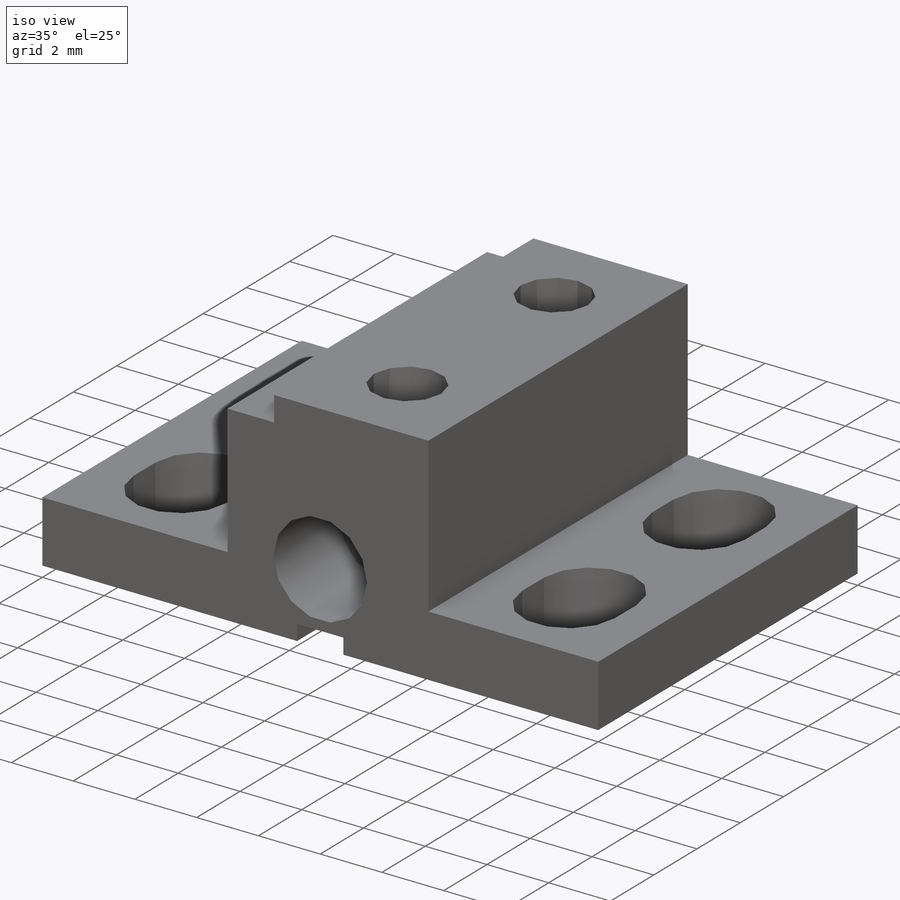
[diagram: iso view]
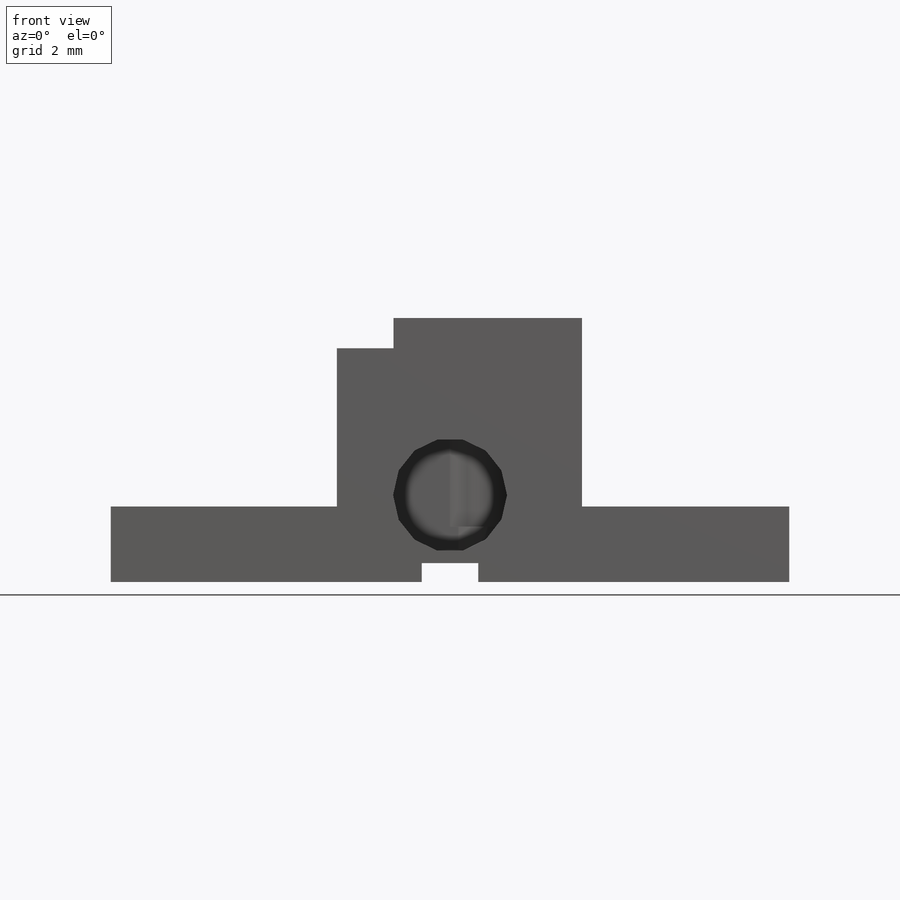
[diagram: front view]
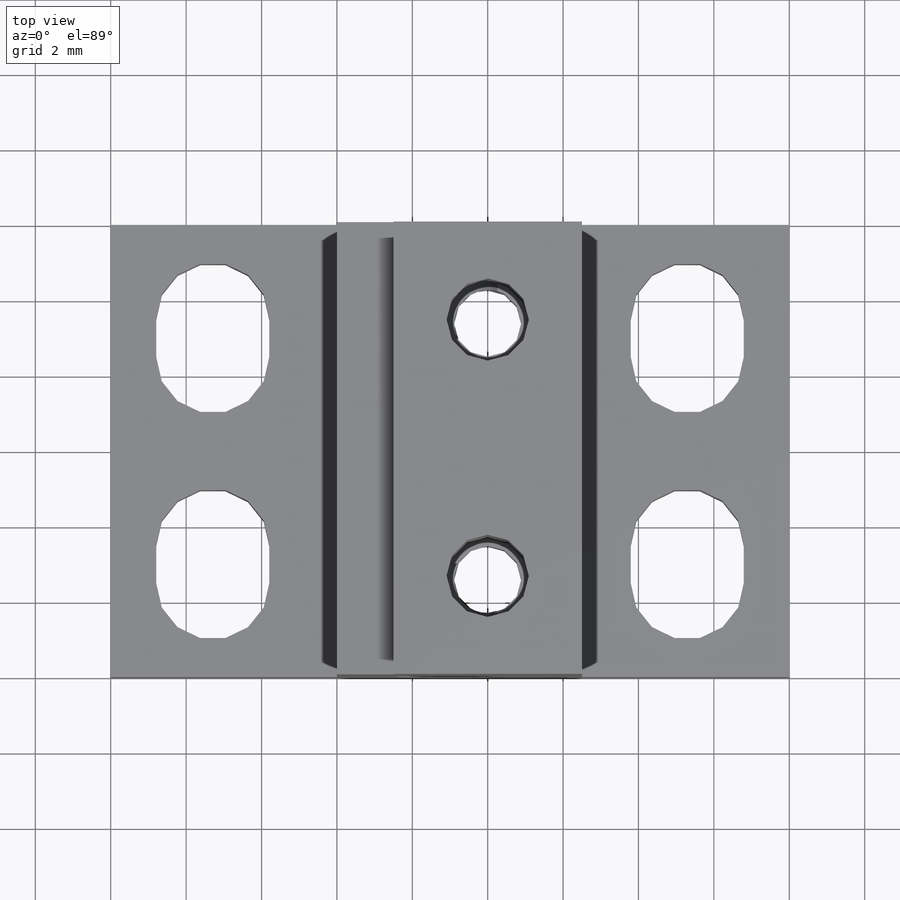
[diagram: top view]
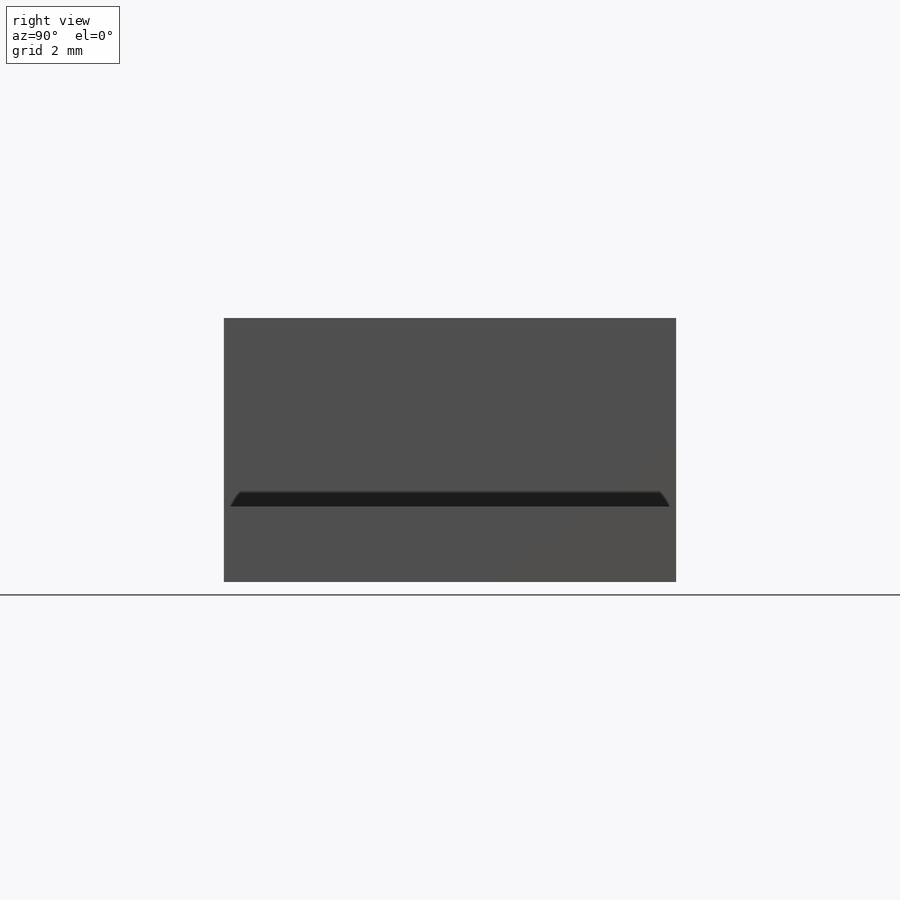
[diagram: right view]
SOLIDWORKS PART (.sldprt)
format: sldprt  version: not decoded by parser v0  size: 356,864 bytes
history: native  units: mm
features: sketch x8, cut_extrude x4, mirror x3, extrude x2, plane x2, material x1, hole x1 + 1 further entry (+13 scaffold rows collapsed)
feature tree (35):
  scaffold x13  (default folders/planes/origin — collapsed)
  material  "6061-T6 (SS)"
  "Origin"  ID=-1
  sketch  "Sketch1"  dims[D1=12.0mm D2=18.0mm]
  extrude  "Extrude1"  Depth=2mm
  plane  "Plane1"
  plane  "Plane2"
  sketch  "Sketch2"  dims[D1=8.25mm D2=1.5mm D3=0.5mm]
  cut_extrude  "Extrude2"  [1 undecoded]
  sketch  "Sketch3"  dims[D3=1.5mm D1=2.5mm D2=1.0mm]
  cut_extrude  "Extrude3"  [1 undecoded]
  mirror  "Mirror1"
  mirror  "Mirror2"
  sketch  "Sketch4"  dims[D1=6.0mm D2=5.5mm]
  extrude  "Extrude4"  Depth=5mm
  sketch  "Sketch5"  dims[D1=5.0mm D2=0.8mm]
  cut_extrude  "Extrude5"  [1 undecoded]
  hole  "#2-56 Tapped Hole1"  Diameter=1.778mm Depth=9.4488mm
  sketch  "3DSketch1"  dims[D1=2.5mm D2=3.4mm D3=3.4mm]
  sketch  "Sketch6"  dims[hole-wizard template sketch: 29 standard entries collapsed; hole parameters kept: c8.Tap Drill Depth=9.4488mm c8.Thread Major Dia.=2.1844mm c8.Thread Depth=5.5372mm c8.D5=~14.816244mm c8.Drill Angle=118.0deg]
  sketch  "Sketch7"  dims[D2=3.0226mm D1=2.3mm]
  cut_extrude  "Extrude6"  Depth=3.0226mm
  mirror  "Mirror3"
decode coverage: 12 of 18 modeling features carry decoded parameters; 1 rows unclassified (native names shown)
note: ~ marks probable driven/reference dimensions
note: 3 parameter values undecoded
summary: no parameter record found for 3 features
note: suppression state not decoded; provenance and decode notes live in map.json
